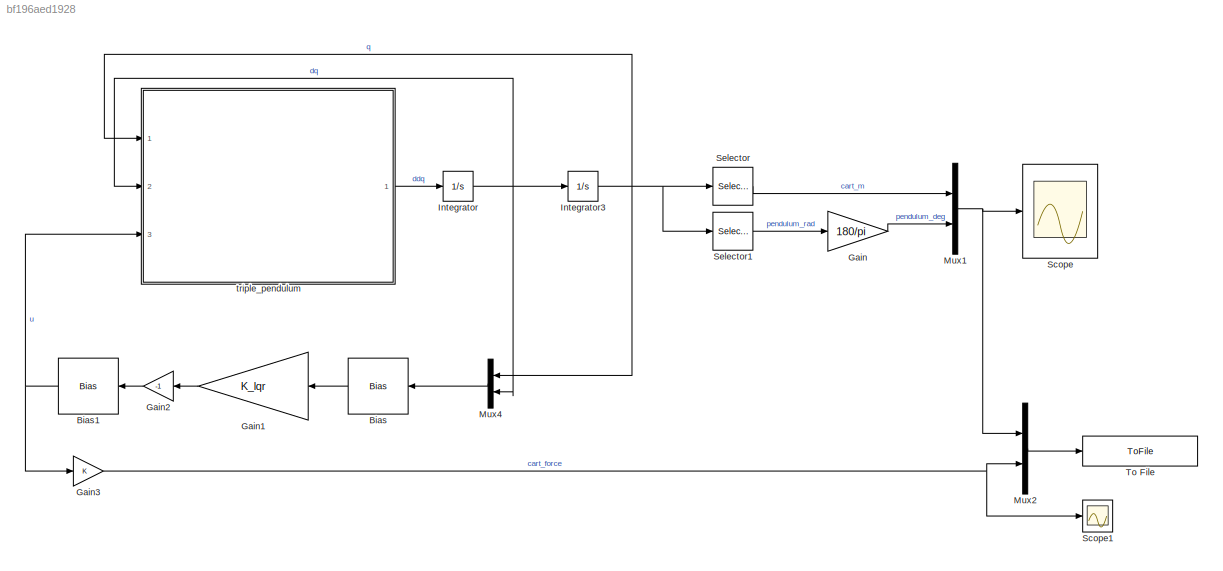
MODEL slx_bf196aed1928
KIND model
CONFIG AbsTol = auto
CONFIG EnableMultiTasking = off
CONFIG FixedStep = auto
CONFIG MaxStep = auto
CONFIG MinStep = auto
CONFIG RelTol = 1e-3
CONFIG SampleTimeConstraint = Unconstrained
CONFIG SolverName = VariableStepAuto
CONFIG StartTime = 0.0
CONFIG StopTime = 10
BLOCK [Bias] Bias
  Bias = -qe
  SaturateOnIntegerOverflow = off
BLOCK [Bias] Bias1
  Bias = ue
  SaturateOnIntegerOverflow = off
BLOCK [Gain] Gain
  Gain = 180/pi
BLOCK [Gain] Gain1
  Gain = K_lqr
  Multiplication = Matrix(K*u)
BLOCK [Gain] Gain2
  Gain = -1
BLOCK [Gain] Gain3
BLOCK [Integrator] Integrator
  InitialCondition = [0;0;0;0]
  Ports = [1, 1]
BLOCK [Integrator] Integrator3
  InitialCondition = [0;0.05;-0.05;-0.02]
  Ports = [1, 1]
BLOCK [Mux] Mux1
  DisplayOption = bar
  Inputs = 2
  Ports = [2, 1]
BLOCK [Mux] Mux2
  DisplayOption = bar
  Inputs = 2
  Ports = [2, 1]
BLOCK [Mux] Mux4
  DisplayOption = bar
  Inputs = 2
  Ports = [2, 1]
BLOCK [Scope] Scope
  Floating = off
  NumInputPorts = 1
  Ports = [1]
  ScopeSpecificationString = Simulink.scopes.TimeScopeBlockCfg('CurrentConfiguration', extmgr.ConfigurationSet(extmgr.Configuration('Core','General UI',true),extmgr.Configuration('Core','Source UI',true),extmgr.Configuration('Sources','WiredSimulink',true,'SampleTime','0.01'),extmgr.Configuration('Visuals','Time Domain',true,'SerializedDisplays',{struct('MinYLimReal','-4.02923','MaxYLimReal','6.85916','YLabelReal','','MinYLim...<+1495ch>
BLOCK [Scope] Scope1
  Floating = off
  NumInputPorts = 1
  Ports = [1]
  ScopeSpecificationString = Simulink.scopes.TimeScopeBlockCfg('CurrentConfiguration', extmgr.ConfigurationSet(extmgr.Configuration('Core','General UI',true),extmgr.Configuration('Core','Source UI',true),extmgr.Configuration('Sources','WiredSimulink',true,'DataLoggingVariableName','ScopeData1'),extmgr.Configuration('Visuals','Time Domain',true,'SerializedDisplays',{struct('MinYLimReal','-9.12528','MaxYLimReal','21.89636','YLa...<+1590ch>
BLOCK [Selector] Selector
  IndexOptions = Index vector (dialog)
  Indices = 1
  InputPortWidth = 4
  OutputSizes = 1
  Ports = [1, 1]
BLOCK [Selector] Selector1
  IndexOptions = Index vector (dialog)
  Indices = [2,3,4]
  InputPortWidth = 4
  OutputSizes = 1
  Ports = [1, 1]
BLOCK [ToFile] To File
  Filename = data/simout.mat
  MatrixName = position
  Ports = [1]
  SampleTime = 0.01
  SaveFormat = Timeseries
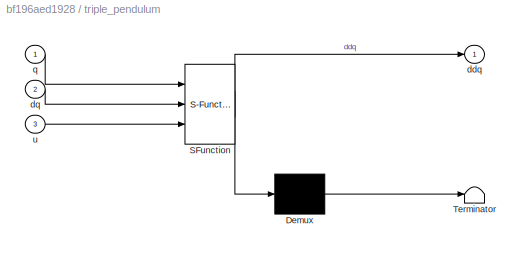
BLOCK [SubSystem] triple_pendulum
  ErrorFcn = Stateflow.Translate.translate
  PermitHierarchicalResolution = ExplicitOnly
  Ports = [3, 1]
  RequestExecContextInheritance = off
  SFBlockType = MATLAB Function
  TreatAsAtomicUnit = on
BLOCK [Demux] triple_pendulum/ Demux 
  Outputs = 1
  Ports = [1, 1]
BLOCK [S-Function] triple_pendulum/ SFunction 
  EnableBusSupport = on
  FunctionName = sf_sfun
  PortCounts = [3 2]
  Ports = [3, 2]
  SFcnIsStateOwnerBlock = off
  SFunctionDeploymentMode = off
  Tag = Stateflow S-Function 2
BLOCK [Terminator] triple_pendulum/ Terminator 
BLOCK [Outport] triple_pendulum/ddq
BLOCK [Inport] triple_pendulum/dq
  Port = 2
BLOCK [Inport] triple_pendulum/q
BLOCK [Inport] triple_pendulum/u
  Port = 3
NET Bias1:1 -> Gain3:1, triple_pendulum:3
LINE Bias:1 -> Gain1:1
LINE Gain1:1 -> Gain2:1
LINE Gain2:1 -> Bias1:1
NET Gain3:1 -> Mux2:2, Scope1:1
LINE Gain:1 -> Mux1:2
NET Integrator3:1 -> Mux4:1, Selector1:1, Selector:1, triple_pendulum:1
NET Integrator:1 -> Integrator3:1, Mux4:2, triple_pendulum:2
NET Mux1:1 -> Mux2:1, Scope:1
LINE Mux2:1 -> To File:1
LINE Mux4:1 -> Bias:1
LINE Selector1:1 -> Gain:1
LINE Selector:1 -> Mux1:1
LINE triple_pendulum:1 -> Integrator:1
note: NET lines group one-source signal fan-out (src -> all destinations, sorted); 1:1 wires keep LINE
CHART triple_pendulum states=1 transitions=1
  STATE_LABEL 'eML_blk_kernel()'
  STATE_LABEL 'SCRIPT:\nfunction ddq = triple_pendulum(q,dq,u)\n    ddq = ode(q(1),q(2),q(3),q(4),dq(1),dq(2),dq(3),dq(4),u(1),0,0,0);\nend'
CHART  states=0 transitions=0
